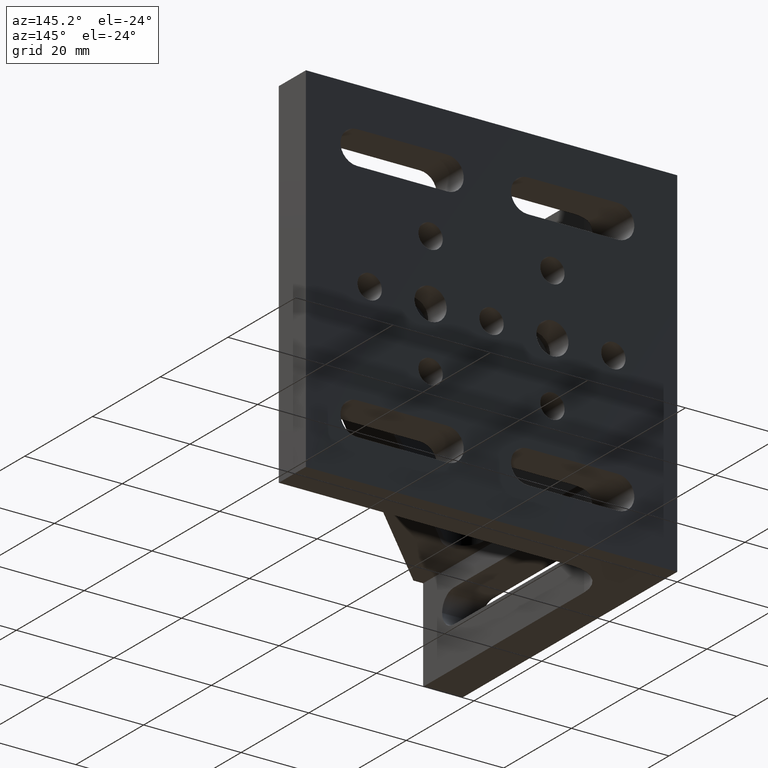
[diagram: clean part render]
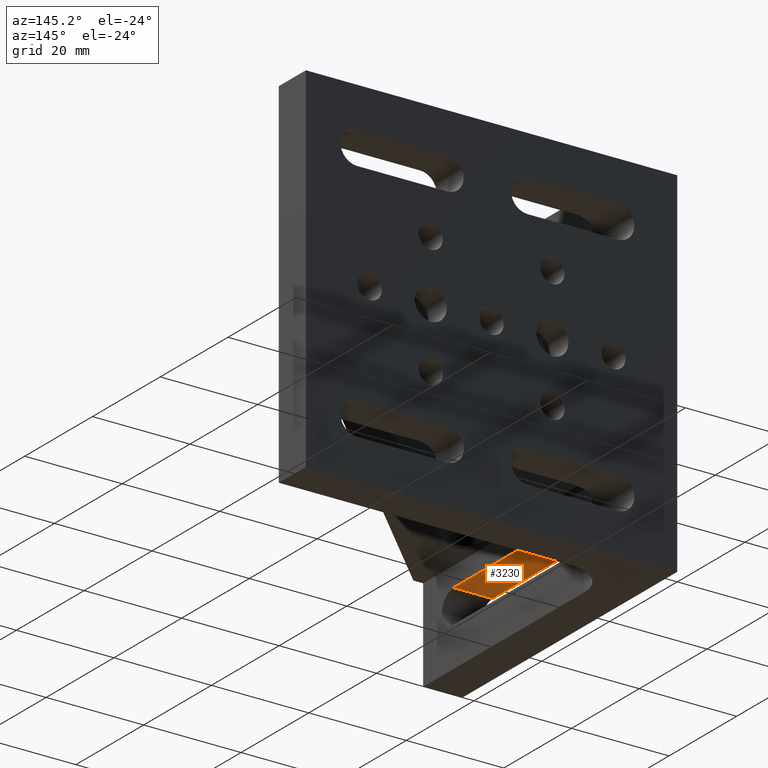
[diagram: same view with one face highlighted and labeled with its STEP entity id]
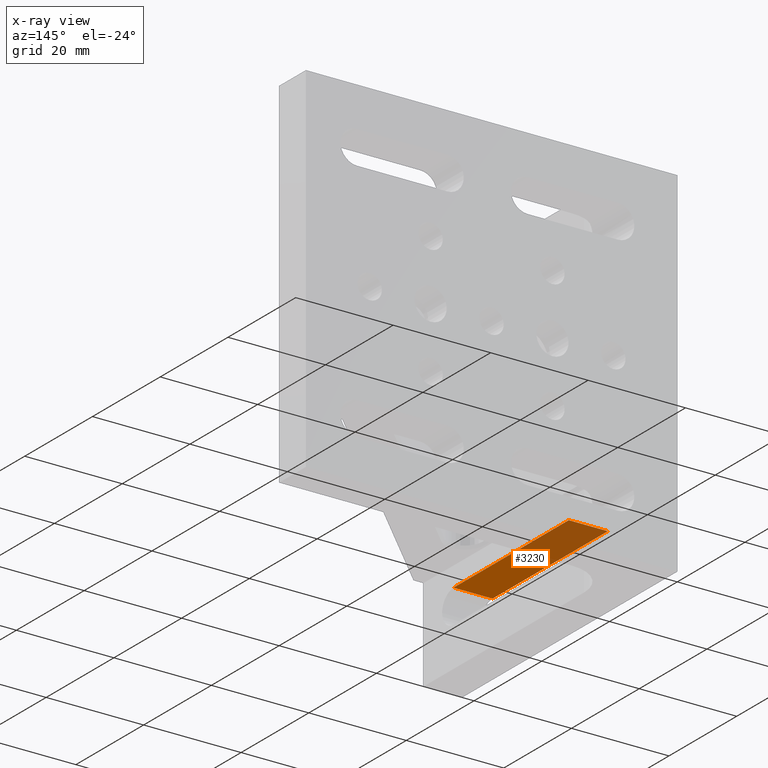
[diagram: x-ray of the same camera — body ghosted, the highlighted face saturated]
A machine part, auxiliary view. The second image highlights one B-rep face of the part: STEP entity #3230.
The next image is the same camera in x-ray: the body ghosted, the highlighted face saturated — about 44% of this face is hidden behind the body in this view.
In plain terms, the highlighted planar face has unit normal (-0, 0, 1).
Its self-contained STEP definition (entity closure, byte-faithful):
#2 = PLANE ( 'NONE',  #348 ) ;
#5 = LINE ( 'NONE', #2732, #200 ) ;
#18 = FACE_OUTER_BOUND ( 'NONE', #687, .T. ) ;
#171 = CARTESIAN_POINT ( 'NONE',  ( 7.999999999999992895, -20.50000000000002132, -21.59999999999999787 ) ) ;
#193 = VECTOR ( 'NONE', #1636, 1000.000000000000000 ) ;
#200 = VECTOR ( 'NONE', #2481, 1000.000000000000000 ) ;
#348 = AXIS2_PLACEMENT_3D ( 'NONE', #3242, #996, #2971 ) ;
#466 = VERTEX_POINT ( 'NONE', #1338 ) ;
#552 = LINE ( 'NONE', #3243, #2601 ) ;
#590 = ORIENTED_EDGE ( 'NONE', *, *, #1846, .F. ) ;
#616 = LINE ( 'NONE', #885, #193 ) ;
#687 = EDGE_LOOP ( 'NONE', ( #2165, #1559, #1413, #590 ) ) ;
#777 = EDGE_CURVE ( 'NONE', #2316, #466, #552, .T. ) ;
#796 = EDGE_CURVE ( 'NONE', #1893, #2137, #5, .T. ) ;
#885 = CARTESIAN_POINT ( 'NONE',  ( 76.20100000000000762, -54.50000000000002132, -21.59999999999999076 ) ) ;
#996 = DIRECTION ( 'NONE',  ( -2.499321826189137217E-32, 2.040851148208008245E-16, 1.000000000000000000 ) ) ;
#1338 = CARTESIAN_POINT ( 'NONE',  ( 2.510525938252076454E-15, -20.50000000000002487, -21.59999999999999787 ) ) ;
#1413 = ORIENTED_EDGE ( 'NONE', *, *, #777, .T. ) ;
#1507 = DIRECTION ( 'NONE',  ( -1.224646799147353207E-16, 1.000000000000000000, -2.040851148208008245E-16 ) ) ;
#1559 = ORIENTED_EDGE ( 'NONE', *, *, #2225, .T. ) ;
#1636 = DIRECTION ( 'NONE',  ( -1.000000000000000000, -1.224646799147352961E-16, -0.000000000000000000 ) ) ;
#1846 = EDGE_CURVE ( 'NONE', #1893, #466, #1891, .T. ) ;
#1891 = LINE ( 'NONE', #3112, #2273 ) ;
#1893 = VERTEX_POINT ( 'NONE', #171 ) ;
#1970 = CARTESIAN_POINT ( 'NONE',  ( 6.674325055353077407E-15, -54.50000000000002842, -21.59999999999999076 ) ) ;
#2137 = VERTEX_POINT ( 'NONE', #2886 ) ;
#2165 = ORIENTED_EDGE ( 'NONE', *, *, #796, .T. ) ;
#2225 = EDGE_CURVE ( 'NONE', #2137, #2316, #616, .T. ) ;
#2273 = VECTOR ( 'NONE', #2866, 1000.000000000000000 ) ;
#2316 = VERTEX_POINT ( 'NONE', #1970 ) ;
#2481 = DIRECTION ( 'NONE',  ( 2.500502307714317123E-16, -1.000000000000000000, 2.040851148208008245E-16 ) ) ;
#2601 = VECTOR ( 'NONE', #1507, 1000.000000000000000 ) ;
#2732 = CARTESIAN_POINT ( 'NONE',  ( 7.999999999999992895, -20.50000000000003197, -21.59999999999999787 ) ) ;
#2866 = DIRECTION ( 'NONE',  ( -1.000000000000000000, -1.224646799147352961E-16, -0.000000000000000000 ) ) ;
#2886 = CARTESIAN_POINT ( 'NONE',  ( 8.000000000000007105, -54.50000000000002842, -21.59999999999999076 ) ) ;
#2971 = DIRECTION ( 'NONE',  ( 0.000000000000000000, -1.000000000000000000, 2.040851148208008245E-16 ) ) ;
#3112 = CARTESIAN_POINT ( 'NONE',  ( 76.20100000000000762, -20.50000000000001421, -21.59999999999999787 ) ) ;
#3230 = ADVANCED_FACE ( 'NONE', ( #18 ), #2, .F. ) ;
#3242 = CARTESIAN_POINT ( 'NONE',  ( 76.20100000000000762, -20.50000000000001421, -21.59999999999999787 ) ) ;
#3243 = CARTESIAN_POINT ( 'NONE',  ( 2.510525938252076454E-15, -20.50000000000002487, -21.59999999999999787 ) ) ;